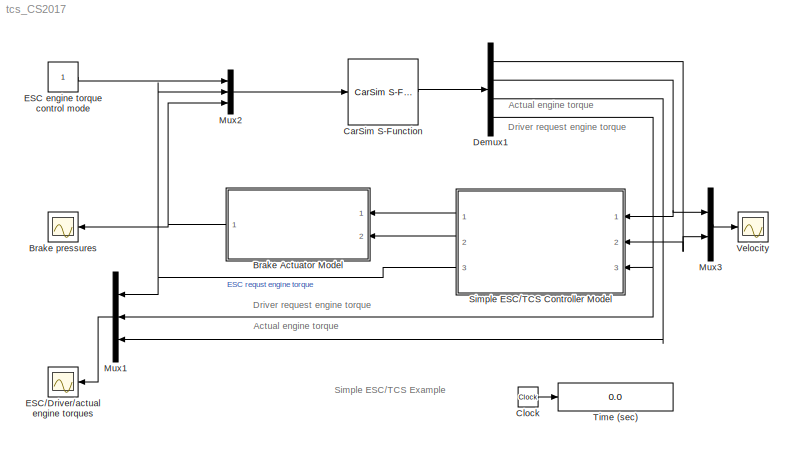
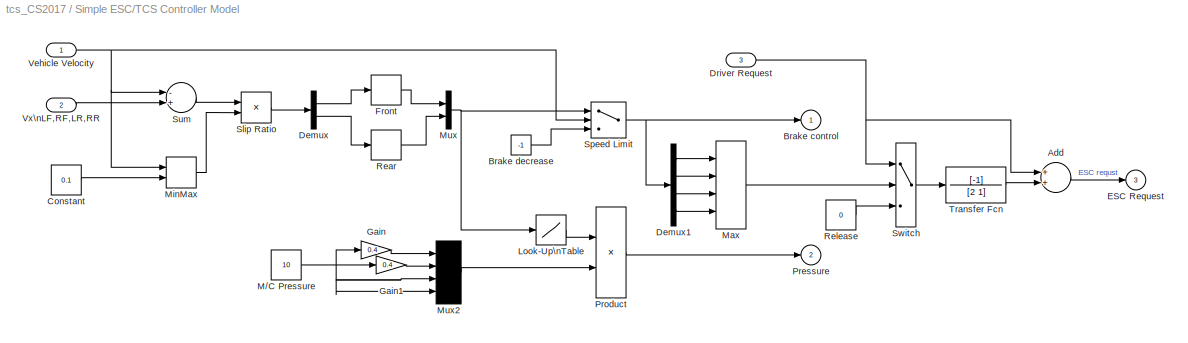
MODEL tcs_CS2017
KIND model
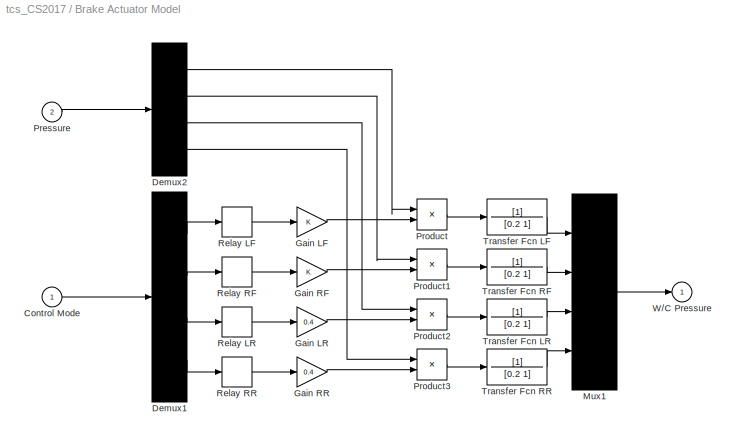
BLOCK [SubSystem] Brake Actuator Model
  FunctionWithSeparateData = off
  MaskHideContents = off
  MinAlgLoopOccurrences = off
  Opaque = off
  Ports = [2, 1]
  PropExecContextOutsideSubsystem = off
  RTWSystemCode = Auto
  RequestExecContextInheritance = off
  SID = 65
BLOCK [Inport] Brake Actuator Model/Control Mode
  IconDisplay = Port number
  SID = 66
BLOCK [Demux] Brake Actuator Model/Demux1
  Ports = [1, 4]
  SID = 68
BLOCK [Demux] Brake Actuator Model/Demux2
  Ports = [1, 4]
  SID = 69
BLOCK [Gain] Brake Actuator Model/Gain LF
  SID = 70
BLOCK [Gain] Brake Actuator Model/Gain LR
  Gain = 0.4
  SID = 71
BLOCK [Gain] Brake Actuator Model/Gain RF
  SID = 72
BLOCK [Gain] Brake Actuator Model/Gain RR
  Gain = 0.4
  SID = 73
BLOCK [Mux] Brake Actuator Model/Mux1
  Ports = [4, 1]
  SID = 74
BLOCK [Inport] Brake Actuator Model/Pressure
  IconDisplay = Port number
  Port = 2
  SID = 67
BLOCK [Product] Brake Actuator Model/Product
  Ports = [2, 1]
  SID = 75
BLOCK [Product] Brake Actuator Model/Product1
  Ports = [2, 1]
  SID = 76
BLOCK [Product] Brake Actuator Model/Product2
  Ports = [2, 1]
  SID = 77
BLOCK [Product] Brake Actuator Model/Product3
  Ports = [2, 1]
  SID = 78
BLOCK [Relay] Brake Actuator Model/Relay LF
  OffSwitchValue = -0.5
  OnSwitchValue = 0.5
  SID = 79
BLOCK [Relay] Brake Actuator Model/Relay LR
  OffSwitchValue = -0.5
  OnSwitchValue = 0.5
  SID = 80
BLOCK [Relay] Brake Actuator Model/Relay RF
  OffSwitchValue = -0.5
  OnSwitchValue = 0.5
  SID = 81
BLOCK [Relay] Brake Actuator Model/Relay RR
  OffSwitchValue = -0.5
  OnSwitchValue = 0.5
  SID = 82
BLOCK [TransferFcn] Brake Actuator Model/Transfer Fcn LF
  Denominator = [0.2 1]
  SID = 83
BLOCK [TransferFcn] Brake Actuator Model/Transfer Fcn LR
  Denominator = [0.2 1]
  SID = 84
BLOCK [TransferFcn] Brake Actuator Model/Transfer Fcn RF
  Denominator = [0.2 1]
  SID = 85
BLOCK [TransferFcn] Brake Actuator Model/Transfer Fcn RR
  Denominator = [0.2 1]
  SID = 86
BLOCK [Outport] Brake Actuator Model/W//C Pressure
  IconDisplay = Port number
  InitialOutput = 0
  SID = 87
BLOCK [Scope] Brake pressures
  DataFormat = Array
  Floating = off
  LimitDataPoints = off
  NumInputPorts = 1
  Ports = [1]
  SID = 95
  SaveName = ScopeData2
  TickLabels = on
  YMax = 8
  YMin = 0
BLOCK [Reference] CarSim S-Function  REF=Solver_SF/CarSim S-Function
  Ports = [1, 1]
  Priority = 1
  SID = 19
  SIMFILE = simfile.sim
  SourceBlock = Solver_SF/CarSim S-Function
  SourceType = Vehicle math model library
BLOCK [Clock] Clock
  Decimation = 10
  SID = 20
BLOCK [Demux] Demux1
  Outputs = [4 1 1 1]
  Ports = [1, 4]
  SID = 21
BLOCK [Constant] ESC engine torque control mode
  SID = 64
BLOCK [Scope] ESC//Driver//actual engine torques
  DataFormat = Array
  Floating = off
  LimitDataPoints = off
  NumInputPorts = 1
  Ports = [1]
  SID = 47
  SaveName = ScopeData1
  TickLabels = on
  YMax = 800
  YMin = 0
BLOCK [Mux] Mux1
  DisplayOption = bar
  Inputs = 3
  Ports = [3, 1]
  SID = 62
BLOCK [Mux] Mux2
  DisplayOption = bar
  Inputs = 3
  Ports = [3, 1]
  SID = 63
BLOCK [Mux] Mux3
  DisplayOption = bar
  Inputs = 2
  Ports = [2, 1]
  SID = 22
BLOCK [SubSystem] Simple ESC//TCS Controller Model
  FunctionWithSeparateData = off
  MaskHideContents = off
  MinAlgLoopOccurrences = off
  Opaque = off
  Ports = [3, 3]
  PropExecContextOutsideSubsystem = off
  RTWSystemCode = Auto
  RequestExecContextInheritance = off
  SID = 25
BLOCK [Sum] Simple ESC//TCS Controller Model/Add
  InputSameDT = off
  OutDataTypeStr = Inherit: Inherit via internal rule
  Ports = [2, 1]
  SID = 97
  SaturateOnIntegerOverflow = off
BLOCK [Outport] Simple ESC//TCS Controller Model/Brake control
  IconDisplay = Port number
  InitialOutput = 0
  SID = 39
BLOCK [Constant] Simple ESC//TCS Controller Model/Brake decrease
  SID = 31
  Value = -1
BLOCK [Constant] Simple ESC//TCS Controller Model/Constant
  SID = 106
  Value = 0.1
BLOCK [Demux] Simple ESC//TCS Controller Model/Demux
  Outputs = [2 2]
  Ports = [1, 2]
  SID = 28
BLOCK [Demux] Simple ESC//TCS Controller Model/Demux1
  Ports = [1, 4]
  SID = 29
BLOCK [Inport] Simple ESC//TCS Controller Model/Driver Request
  IconDisplay = Port number
  Port = 3
  SID = 101
BLOCK [Outport] Simple ESC//TCS Controller Model/ESC Request
  IconDisplay = Port number
  InitialOutput = 0
  Port = 3
  SID = 102
BLOCK [Relay] Simple ESC//TCS Controller Model/Front
  OffOutputValue = -1
  OffSwitchValue = 0.05
  OnSwitchValue = 0.1
  SID = 30
BLOCK [Gain] Simple ESC//TCS Controller Model/Gain
  Gain = 0.4
  SID = 88
BLOCK [Gain] Simple ESC//TCS Controller Model/Gain1
  Gain = 0.4
  SID = 89
BLOCK [Lookup] Simple ESC//TCS Controller Model/Look-Up\nTable
  InputValues = [-1,0,0.01,0.05,1,2]
  SID = 90
  Table = [0,0,0.2,0.2,1.5,1.5]
BLOCK [Constant] Simple ESC//TCS Controller Model/M//C Pressure
  SID = 91
  Value = 10
BLOCK [MinMax] Simple ESC//TCS Controller Model/Max
  Function = max
  Inputs = 4
  Ports = [4, 1]
  SID = 32
BLOCK [MinMax] Simple ESC//TCS Controller Model/MinMax
  Function = max
  InputSameDT = off
  Inputs = 2
  Ports = [2, 1]
  SID = 105
  SaturateOnIntegerOverflow = off
BLOCK [Mux] Simple ESC//TCS Controller Model/Mux
  DisplayOption = bar
  Inputs = 2
  Ports = [2, 1]
  SID = 33
BLOCK [Mux] Simple ESC//TCS Controller Model/Mux2
  Ports = [4, 1]
  SID = 92
BLOCK [Outport] Simple ESC//TCS Controller Model/Pressure
  IconDisplay = Port number
  InitialOutput = 0
  Port = 2
  SID = 94
BLOCK [Product] Simple ESC//TCS Controller Model/Product
  Ports = [2, 1]
  SID = 93
BLOCK [Relay] Simple ESC//TCS Controller Model/Rear
  OffOutputValue = -1
  OffSwitchValue = 0.05
  OnSwitchValue = 0.1
  SID = 35
BLOCK [Constant] Simple ESC//TCS Controller Model/Release
  SID = 98
  Value = 0
BLOCK [Product] Simple ESC//TCS Controller Model/Slip Ratio
  Inputs = */
  Ports = [2, 1]
  RndMeth = Floor
  SID = 36
BLOCK [Switch] Simple ESC//TCS Controller Model/Speed Limit
  SID = 37
  Threshold = 1.5
BLOCK [Sum] Simple ESC//TCS Controller Model/Sum
  Inputs = -+
  Ports = [2, 1]
  SID = 38
BLOCK [Switch] Simple ESC//TCS Controller Model/Switch
  InputSameDT = off
  SID = 99
  SaturateOnIntegerOverflow = off
  Threshold = 0.001
BLOCK [TransferFcn] Simple ESC//TCS Controller Model/Transfer Fcn
  Denominator = [2  1]
  Numerator = [-1]
  SID = 100
BLOCK [Inport] Simple ESC//TCS Controller Model/Vehicle Velocity
  IconDisplay = Port number
  SID = 26
BLOCK [Inport] Simple ESC//TCS Controller Model/Vx\nLF,RF,LR,RR
  IconDisplay = Port number
  Port = 2
  SID = 27
BLOCK [Display] Time (sec)
  Decimation = 100
  Format = bank
  Lockdown = off
  Ports = [1]
  SID = 40
BLOCK [Scope] Velocity
  DataFormat = Array
  Floating = off
  LimitDataPoints = off
  NumInputPorts = 1
  Ports = [1]
  SID = 41
  TickLabels = on
  TimeRange = 28
  YMax = 250
  YMin = -10
ANNOTATION (root): Actual engine torque
ANNOTATION (root): Driver request engine torque
ANNOTATION (root): Simple ESC/TCS Example
LINE Brake Actuator Model/Control Mode:1 -> Brake Actuator Model/Demux1:1
LINE Brake Actuator Model/Demux1:1 -> Brake Actuator Model/Relay LF:1
LINE Brake Actuator Model/Demux1:2 -> Brake Actuator Model/Relay RF:1
LINE Brake Actuator Model/Demux1:3 -> Brake Actuator Model/Relay LR:1
LINE Brake Actuator Model/Demux1:4 -> Brake Actuator Model/Relay RR:1
LINE Brake Actuator Model/Demux2:1 -> Brake Actuator Model/Product:1
LINE Brake Actuator Model/Demux2:2 -> Brake Actuator Model/Product1:1
LINE Brake Actuator Model/Demux2:3 -> Brake Actuator Model/Product2:1
LINE Brake Actuator Model/Demux2:4 -> Brake Actuator Model/Product3:1
LINE Brake Actuator Model/Gain LF:1 -> Brake Actuator Model/Product:2
LINE Brake Actuator Model/Gain LR:1 -> Brake Actuator Model/Product2:2
LINE Brake Actuator Model/Gain RF:1 -> Brake Actuator Model/Product1:2
LINE Brake Actuator Model/Gain RR:1 -> Brake Actuator Model/Product3:2
LINE Brake Actuator Model/Mux1:1 -> Brake Actuator Model/W//C Pressure:1
LINE Brake Actuator Model/Pressure:1 -> Brake Actuator Model/Demux2:1
LINE Brake Actuator Model/Product1:1 -> Brake Actuator Model/Transfer Fcn RF:1
LINE Brake Actuator Model/Product2:1 -> Brake Actuator Model/Transfer Fcn LR:1
LINE Brake Actuator Model/Product3:1 -> Brake Actuator Model/Transfer Fcn RR:1
LINE Brake Actuator Model/Product:1 -> Brake Actuator Model/Transfer Fcn LF:1
LINE Brake Actuator Model/Relay LF:1 -> Brake Actuator Model/Gain LF:1
LINE Brake Actuator Model/Relay LR:1 -> Brake Actuator Model/Gain LR:1
LINE Brake Actuator Model/Relay RF:1 -> Brake Actuator Model/Gain RF:1
LINE Brake Actuator Model/Relay RR:1 -> Brake Actuator Model/Gain RR:1
LINE Brake Actuator Model/Transfer Fcn LF:1 -> Brake Actuator Model/Mux1:1
LINE Brake Actuator Model/Transfer Fcn LR:1 -> Brake Actuator Model/Mux1:3
LINE Brake Actuator Model/Transfer Fcn RF:1 -> Brake Actuator Model/Mux1:2
LINE Brake Actuator Model/Transfer Fcn RR:1 -> Brake Actuator Model/Mux1:4
NET Brake Actuator Model:1 -> Brake pressures:1, Mux2:3
LINE CarSim S-Function:1 -> Demux1:1
LINE Clock:1 -> Time (sec):1
NET Demux1:1 -> Mux3:2, Simple ESC//TCS Controller Model:2
NET Demux1:2 -> Mux3:1, Simple ESC//TCS Controller Model:1
LINE Demux1:3 -> Mux1:3
NET Demux1:4 -> Mux1:2, Simple ESC//TCS Controller Model:3
LINE ESC engine torque control mode:1 -> Mux2:1
LINE Mux1:1 -> ESC//Driver//actual engine torques:1
LINE Mux2:1 -> CarSim S-Function:1
LINE Mux3:1 -> Velocity:1
LINE Simple ESC//TCS Controller Model/Add:1 -> Simple ESC//TCS Controller Model/ESC Request:1
LINE Simple ESC//TCS Controller Model/Brake decrease:1 -> Simple ESC//TCS Controller Model/Speed Limit:3
LINE Simple ESC//TCS Controller Model/Constant:1 -> Simple ESC//TCS Controller Model/MinMax:2
LINE Simple ESC//TCS Controller Model/Demux1:1 -> Simple ESC//TCS Controller Model/Max:1
LINE Simple ESC//TCS Controller Model/Demux1:2 -> Simple ESC//TCS Controller Model/Max:2
LINE Simple ESC//TCS Controller Model/Demux1:3 -> Simple ESC//TCS Controller Model/Max:3
LINE Simple ESC//TCS Controller Model/Demux1:4 -> Simple ESC//TCS Controller Model/Max:4
LINE Simple ESC//TCS Controller Model/Demux:1 -> Simple ESC//TCS Controller Model/Front:1
LINE Simple ESC//TCS Controller Model/Demux:2 -> Simple ESC//TCS Controller Model/Rear:1
NET Simple ESC//TCS Controller Model/Driver Request:1 -> Simple ESC//TCS Controller Model/Add:1, Simple ESC//TCS Controller Model/Switch:1
LINE Simple ESC//TCS Controller Model/Front:1 -> Simple ESC//TCS Controller Model/Mux:1
LINE Simple ESC//TCS Controller Model/Gain1:1 -> Simple ESC//TCS Controller Model/Mux2:2
LINE Simple ESC//TCS Controller Model/Gain:1 -> Simple ESC//TCS Controller Model/Mux2:1
LINE Simple ESC//TCS Controller Model/Look-Up\nTable:1 -> Simple ESC//TCS Controller Model/Product:1
NET Simple ESC//TCS Controller Model/M//C Pressure:1 -> Simple ESC//TCS Controller Model/Gain1:1, Simple ESC//TCS Controller Model/Gain:1, Simple ESC//TCS Controller Model/Mux2:3, Simple ESC//TCS Controller Model/Mux2:4
LINE Simple ESC//TCS Controller Model/Max:1 -> Simple ESC//TCS Controller Model/Switch:2
LINE Simple ESC//TCS Controller Model/MinMax:1 -> Simple ESC//TCS Controller Model/Slip Ratio:2
LINE Simple ESC//TCS Controller Model/Mux2:1 -> Simple ESC//TCS Controller Model/Product:2
NET Simple ESC//TCS Controller Model/Mux:1 -> Simple ESC//TCS Controller Model/Look-Up\nTable:1, Simple ESC//TCS Controller Model/Speed Limit:1
LINE Simple ESC//TCS Controller Model/Product:1 -> Simple ESC//TCS Controller Model/Pressure:1
LINE Simple ESC//TCS Controller Model/Rear:1 -> Simple ESC//TCS Controller Model/Mux:2
LINE Simple ESC//TCS Controller Model/Release:1 -> Simple ESC//TCS Controller Model/Switch:3
LINE Simple ESC//TCS Controller Model/Slip Ratio:1 -> Simple ESC//TCS Controller Model/Demux:1
NET Simple ESC//TCS Controller Model/Speed Limit:1 -> Simple ESC//TCS Controller Model/Brake control:1, Simple ESC//TCS Controller Model/Demux1:1
LINE Simple ESC//TCS Controller Model/Sum:1 -> Simple ESC//TCS Controller Model/Slip Ratio:1
LINE Simple ESC//TCS Controller Model/Switch:1 -> Simple ESC//TCS Controller Model/Transfer Fcn:1
LINE Simple ESC//TCS Controller Model/Transfer Fcn:1 -> Simple ESC//TCS Controller Model/Add:2
NET Simple ESC//TCS Controller Model/Vehicle Velocity:1 -> Simple ESC//TCS Controller Model/MinMax:1, Simple ESC//TCS Controller Model/Speed Limit:2, Simple ESC//TCS Controller Model/Sum:1
LINE Simple ESC//TCS Controller Model/Vx\nLF,RF,LR,RR:1 -> Simple ESC//TCS Controller Model/Sum:2
LINE Simple ESC//TCS Controller Model:1 -> Brake Actuator Model:1
LINE Simple ESC//TCS Controller Model:2 -> Brake Actuator Model:2
NET Simple ESC//TCS Controller Model:3 -> Mux1:1, Mux2:2
note: NET lines group one-source signal fan-out (src -> all destinations, sorted); 1:1 wires keep LINE
